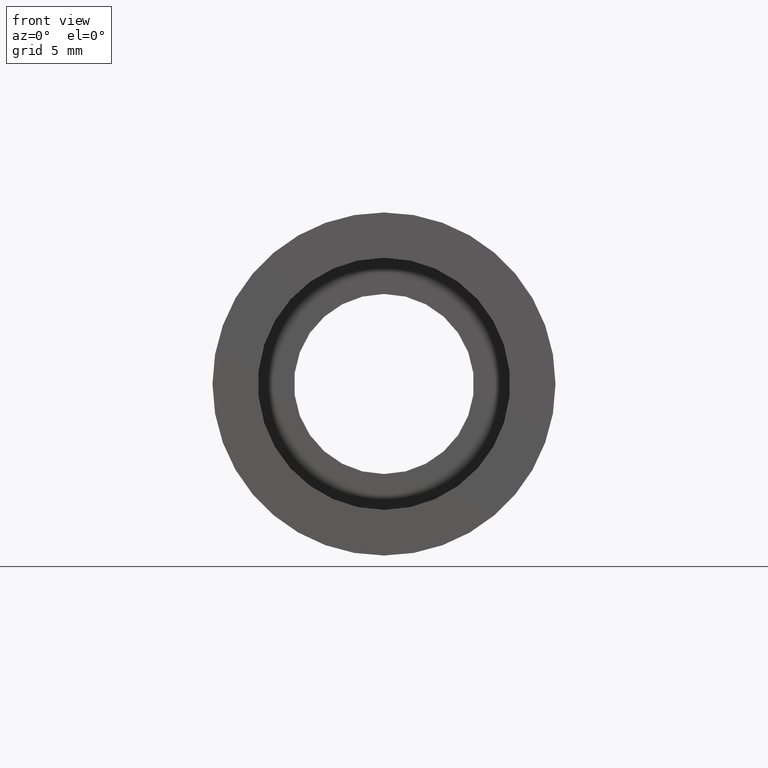
[diagram: clean part render]
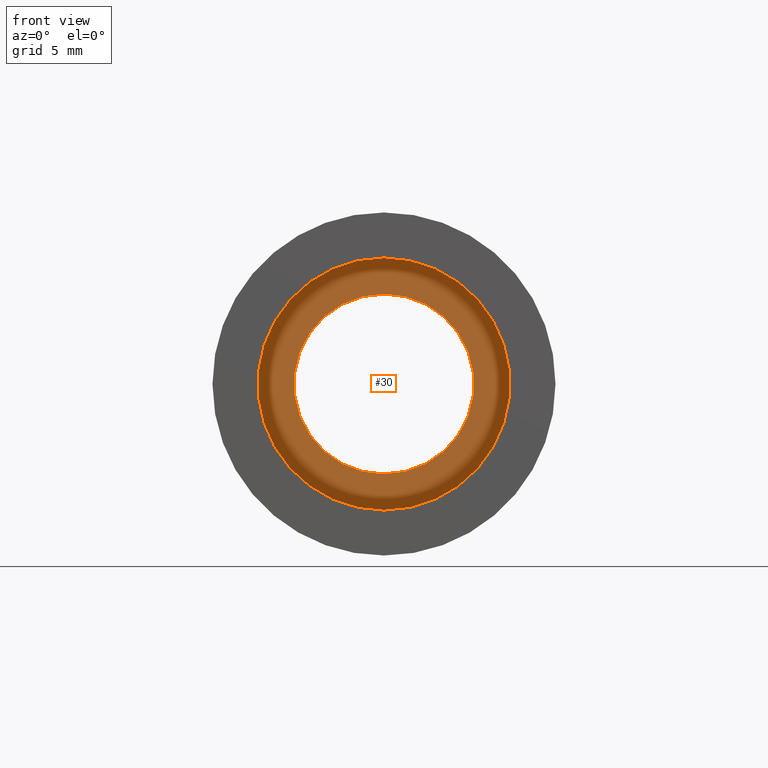
[diagram: same view with one face highlighted and labeled with its STEP entity id]
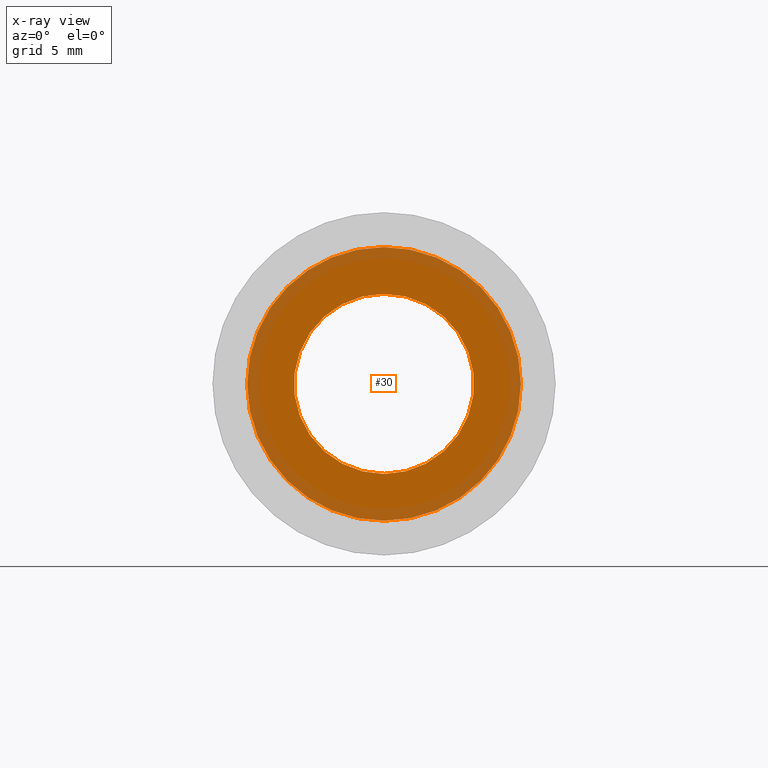
[diagram: x-ray of the same camera — body ghosted, the highlighted face saturated]
A machine part, front view. The second image highlights one B-rep face of the part: STEP entity #30.
The next image is the same camera in x-ray: the body ghosted, the highlighted face saturated — about 27% of this face is hidden behind the body in this view.
In plain terms, the highlighted planar face has unit normal (-0, 1, 0).
Its self-contained STEP definition (entity closure, byte-faithful):
#5 = CARTESIAN_POINT ( 'NONE',  ( 0.0000000000000000000, 5.499999999999976900, 7.600000000000020100 ) ) ;
#8 = PLANE ( 'NONE',  #167 ) ;
#29 = CIRCLE ( 'NONE', #165, 5.000000000000019500 ) ;
#30 = ADVANCED_FACE ( 'NONE', ( #599, #190 ), #8, .F. ) ;
#43 = ORIENTED_EDGE ( 'NONE', *, *, #444, .F. ) ;
#47 = AXIS2_PLACEMENT_3D ( 'NONE', #101, #436, #57 ) ;
#57 = DIRECTION ( 'NONE',  ( 0.0000000000000000000, 0.0000000000000000000, 1.000000000000000000 ) ) ;
#65 = CIRCLE ( 'NONE', #47, 7.600000000000020100 ) ;
#90 = EDGE_CURVE ( 'NONE', #575, #399, #336, .T. ) ;
#101 = CARTESIAN_POINT ( 'NONE',  ( 0.0000000000000000000, 5.499999999999976900, 0.0000000000000000000 ) ) ;
#103 = DIRECTION ( 'NONE',  ( -0.0000000000000000000, 1.000000000000000000, 0.0000000000000000000 ) ) ;
#120 = DIRECTION ( 'NONE',  ( -0.0000000000000000000, 1.000000000000000000, -0.0000000000000000000 ) ) ;
#149 = CARTESIAN_POINT ( 'NONE',  ( 7.600000000000020100, 5.499999999999984000, 0.0000000000000000000 ) ) ;
#158 = CARTESIAN_POINT ( 'NONE',  ( 0.0000000000000000000, 5.499999999999976900, 5.000000000000019500 ) ) ;
#165 = AXIS2_PLACEMENT_3D ( 'NONE', #278, #382, #332 ) ;
#167 = AXIS2_PLACEMENT_3D ( 'NONE', #149, #103, #395 ) ;
#190 = FACE_BOUND ( 'NONE', #577, .T. ) ;
#196 = EDGE_LOOP ( 'NONE', ( #43, #297 ) ) ;
#200 = DIRECTION ( 'NONE',  ( 0.0000000000000000000, 0.0000000000000000000, 1.000000000000000000 ) ) ;
#228 = AXIS2_PLACEMENT_3D ( 'NONE', #480, #478, #200 ) ;
#278 = CARTESIAN_POINT ( 'NONE',  ( 0.0000000000000000000, 5.499999999999976900, 0.0000000000000000000 ) ) ;
#297 = ORIENTED_EDGE ( 'NONE', *, *, #402, .F. ) ;
#332 = DIRECTION ( 'NONE',  ( 0.0000000000000000000, 0.0000000000000000000, 1.000000000000000000 ) ) ;
#333 = CIRCLE ( 'NONE', #228, 7.600000000000020100 ) ;
#336 = CIRCLE ( 'NONE', #555, 5.000000000000019500 ) ;
#376 = VERTEX_POINT ( 'NONE', #5 ) ;
#382 = DIRECTION ( 'NONE',  ( -0.0000000000000000000, 1.000000000000000000, -0.0000000000000000000 ) ) ;
#384 = ORIENTED_EDGE ( 'NONE', *, *, #603, .T. ) ;
#387 = CARTESIAN_POINT ( 'NONE',  ( 6.123233995736789000E-016, 5.499999999999976900, -5.000000000000019500 ) ) ;
#393 = VERTEX_POINT ( 'NONE', #573 ) ;
#395 = DIRECTION ( 'NONE',  ( 0.0000000000000000000, 0.0000000000000000000, 1.000000000000000000 ) ) ;
#399 = VERTEX_POINT ( 'NONE', #387 ) ;
#402 = EDGE_CURVE ( 'NONE', #393, #376, #333, .T. ) ;
#436 = DIRECTION ( 'NONE',  ( -0.0000000000000000000, 1.000000000000000000, -0.0000000000000000000 ) ) ;
#444 = EDGE_CURVE ( 'NONE', #376, #393, #65, .T. ) ;
#447 = CARTESIAN_POINT ( 'NONE',  ( 0.0000000000000000000, 5.499999999999976900, 0.0000000000000000000 ) ) ;
#478 = DIRECTION ( 'NONE',  ( -0.0000000000000000000, 1.000000000000000000, -0.0000000000000000000 ) ) ;
#480 = CARTESIAN_POINT ( 'NONE',  ( 0.0000000000000000000, 5.499999999999976900, 0.0000000000000000000 ) ) ;
#555 = AXIS2_PLACEMENT_3D ( 'NONE', #447, #120, #588 ) ;
#573 = CARTESIAN_POINT ( 'NONE',  ( 9.307315673519909100E-016, 5.499999999999976900, -7.600000000000020100 ) ) ;
#575 = VERTEX_POINT ( 'NONE', #158 ) ;
#577 = EDGE_LOOP ( 'NONE', ( #617, #384 ) ) ;
#588 = DIRECTION ( 'NONE',  ( 0.0000000000000000000, 0.0000000000000000000, 1.000000000000000000 ) ) ;
#599 = FACE_OUTER_BOUND ( 'NONE', #196, .T. ) ;
#603 = EDGE_CURVE ( 'NONE', #399, #575, #29, .T. ) ;
#617 = ORIENTED_EDGE ( 'NONE', *, *, #90, .T. ) ;